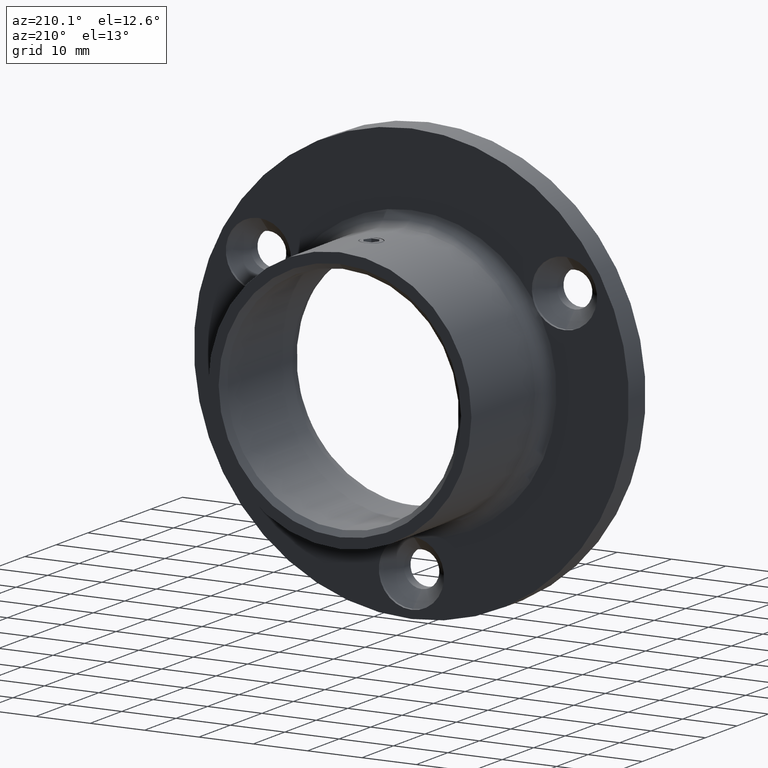
[diagram: clean part render]
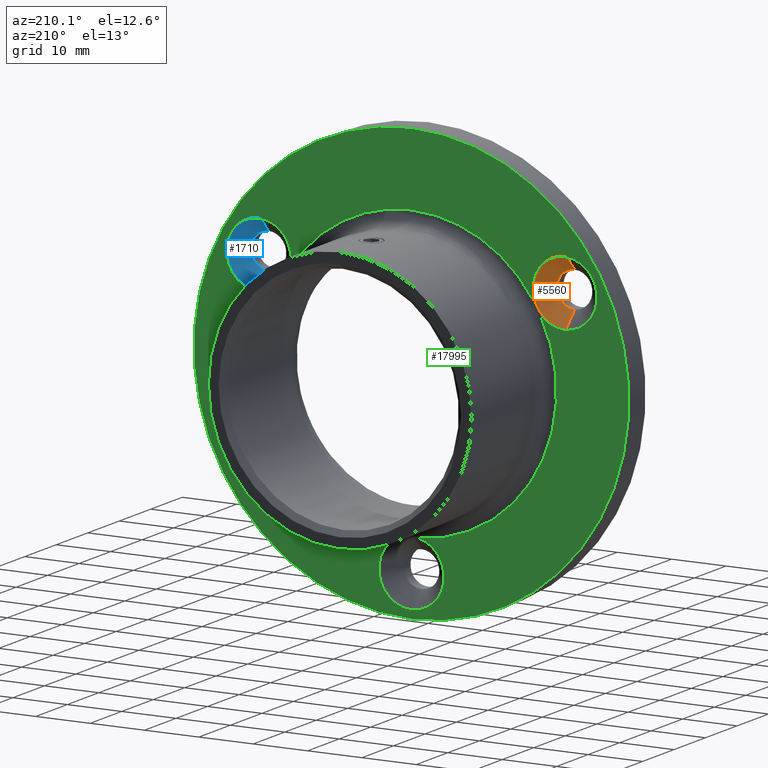
[diagram: same view with three faces highlighted in distinct colors, each labeled with its STEP entity id]
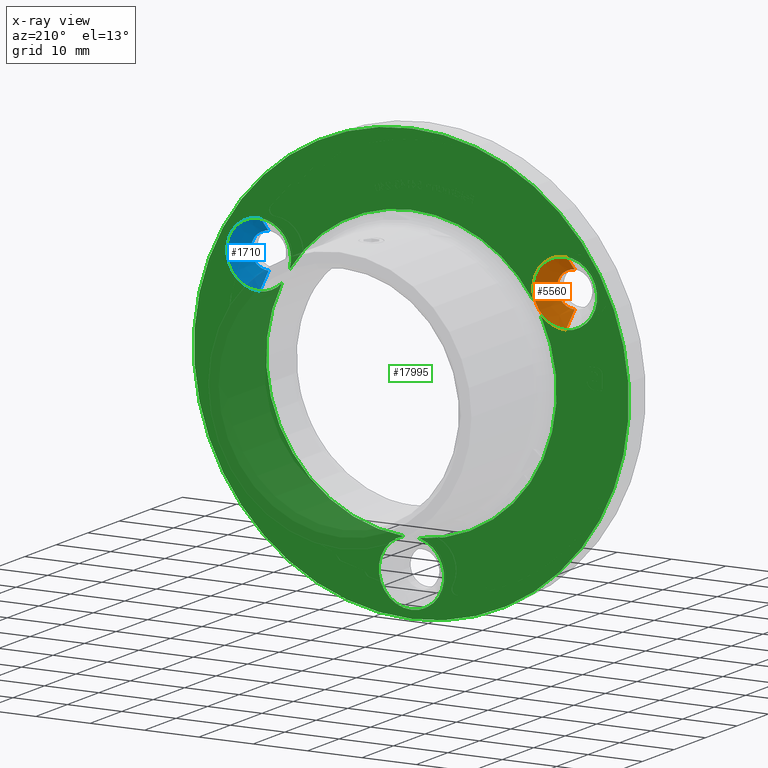
[diagram: x-ray of the same camera — body ghosted, the three highlighted faces saturated]
A machine part, auxiliary view with three faces highlighted in distinct colors.
The next image is the same camera in x-ray (body ghosted, the three faces saturated) — at least one of them is partly hidden behind the body in this view.
Their STEP definitions:

[orange] entity #5560 — the highlighted conical surface has half-angle 45 deg.
#307 = CARTESIAN_POINT ( 'NONE',  ( -28.14582562299440482, 4.799999999999999822, 10.24999999999974243 ) ) ;
#1807 = LINE ( 'NONE', #307, #4485 ) ;
#2123 = AXIS2_PLACEMENT_3D ( 'NONE', #2721, #15356, #16939 ) ;
#2584 = AXIS2_PLACEMENT_3D ( 'NONE', #9635, #15655, #4666 ) ;
#2721 = CARTESIAN_POINT ( 'NONE',  ( -28.14582562299440482, 4.799999999999999822, 16.24999999999974065 ) ) ;
#2879 = ORIENTED_EDGE ( 'NONE', *, *, #9784, .T. ) ;
#3130 = CARTESIAN_POINT ( 'NONE',  ( -28.14582562299440482, 4.799999999999999822, 16.24999999999974065 ) ) ;
#3465 = VERTEX_POINT ( 'NONE', #13587 ) ;
#3725 = CARTESIAN_POINT ( 'NONE',  ( -28.14582562299440482, 4.799999999999999822, 22.24999999999973710 ) ) ;
#3889 = EDGE_LOOP ( 'NONE', ( #12332, #17924, #14070, #2879 ) ) ;
#4485 = VECTOR ( 'NONE', #11384, 999.9999999999998863 ) ;
#4554 = CARTESIAN_POINT ( 'NONE',  ( -28.14582562299440482, 2.049999999999999822, 12.99999999999973710 ) ) ;
#4666 = DIRECTION ( 'NONE',  ( 0.000000000000000000, 0.000000000000000000, 1.000000000000000000 ) ) ;
#5560 = ADVANCED_FACE ( 'NONE', ( #14225 ), #13207, .F. ) ;
#6766 = CIRCLE ( 'NONE', #2584, 3.250000000000002665 ) ;
#7394 = VERTEX_POINT ( 'NONE', #9842 ) ;
#8630 = DIRECTION ( 'NONE',  ( 0.000000000000000000, 0.7071067811865482389, 0.7071067811865469066 ) ) ;
#9635 = CARTESIAN_POINT ( 'NONE',  ( -28.14582562299440482, 2.049999999999999822, 16.24999999999974065 ) ) ;
#9784 = EDGE_CURVE ( 'NONE', #9951, #3465, #16263, .T. ) ;
#9842 = CARTESIAN_POINT ( 'NONE',  ( -28.14582562299440482, 2.049999999999999822, 19.49999999999974420 ) ) ;
#9951 = VERTEX_POINT ( 'NONE', #11134 ) ;
#10504 = VECTOR ( 'NONE', #8630, 999.9999999999998863 ) ;
#10997 = DIRECTION ( 'NONE',  ( -0.000000000000000000, 1.000000000000000000, -0.000000000000000000 ) ) ;
#11134 = CARTESIAN_POINT ( 'NONE',  ( -28.14582562299440482, 4.799999999999999822, 22.24999999999973710 ) ) ;
#11384 = DIRECTION ( 'NONE',  ( 8.659560562354926695E-17, 0.7071067811865482389, -0.7071067811865469066 ) ) ;
#12332 = ORIENTED_EDGE ( 'NONE', *, *, #18464, .F. ) ;
#12763 = EDGE_CURVE ( 'NONE', #7394, #9951, #17195, .T. ) ;
#13062 = VERTEX_POINT ( 'NONE', #4554 ) ;
#13207 = CONICAL_SURFACE ( 'NONE', #2123, 5.999999999999998224, 0.7853981633974473908 ) ;
#13587 = CARTESIAN_POINT ( 'NONE',  ( -28.14582562299440482, 4.799999999999999822, 10.24999999999974243 ) ) ;
#14070 = ORIENTED_EDGE ( 'NONE', *, *, #12763, .T. ) ;
#14225 = FACE_OUTER_BOUND ( 'NONE', #3889, .T. ) ;
#15356 = DIRECTION ( 'NONE',  ( -0.000000000000000000, 1.000000000000000000, -0.000000000000000000 ) ) ;
#15655 = DIRECTION ( 'NONE',  ( -0.000000000000000000, 1.000000000000000000, -0.000000000000000000 ) ) ;
#15701 = DIRECTION ( 'NONE',  ( 0.000000000000000000, 0.000000000000000000, 1.000000000000000000 ) ) ;
#16263 = CIRCLE ( 'NONE', #16672, 5.999999999999998224 ) ;
#16672 = AXIS2_PLACEMENT_3D ( 'NONE', #3130, #10997, #15701 ) ;
#16939 = DIRECTION ( 'NONE',  ( 0.000000000000000000, 0.000000000000000000, 1.000000000000000000 ) ) ;
#17195 = LINE ( 'NONE', #3725, #10504 ) ;
#17425 = EDGE_CURVE ( 'NONE', #7394, #13062, #6766, .T. ) ;
#17924 = ORIENTED_EDGE ( 'NONE', *, *, #17425, .F. ) ;
#18464 = EDGE_CURVE ( 'NONE', #13062, #3465, #1807, .T. ) ;

[blue] entity #1710 — the highlighted conical surface has half-angle 45 deg.
#46 = CARTESIAN_POINT ( 'NONE',  ( 28.14582562299418811, 4.799999999999999822, 22.25000000000013500 ) ) ;
#1631 = LINE ( 'NONE', #10936, #18669 ) ;
#1710 = ADVANCED_FACE ( 'NONE', ( #18514 ), #10577, .F. ) ;
#3107 = CARTESIAN_POINT ( 'NONE',  ( 28.14582562299418811, 2.049999999999999822, 19.50000000000013145 ) ) ;
#4406 = VERTEX_POINT ( 'NONE', #6530 ) ;
#4489 = CARTESIAN_POINT ( 'NONE',  ( 28.14582562299418811, 4.799999999999999822, 10.25000000000012967 ) ) ;
#4832 = EDGE_CURVE ( 'NONE', #4406, #10064, #11501, .T. ) ;
#5089 = VECTOR ( 'NONE', #15616, 1000.000000000000000 ) ;
#5453 = AXIS2_PLACEMENT_3D ( 'NONE', #8136, #6543, #6614 ) ;
#5595 = EDGE_CURVE ( 'NONE', #16162, #17819, #1631, .T. ) ;
#5634 = ORIENTED_EDGE ( 'NONE', *, *, #13681, .F. ) ;
#5842 = EDGE_CURVE ( 'NONE', #17819, #10064, #7818, .T. ) ;
#6530 = CARTESIAN_POINT ( 'NONE',  ( 28.14582562299418811, 2.049999999999999822, 13.00000000000013323 ) ) ;
#6543 = DIRECTION ( 'NONE',  ( -0.000000000000000000, 1.000000000000000000, -0.000000000000000000 ) ) ;
#6614 = DIRECTION ( 'NONE',  ( 0.000000000000000000, 0.000000000000000000, 1.000000000000000000 ) ) ;
#7277 = CARTESIAN_POINT ( 'NONE',  ( 28.14582562299418811, 4.799999999999999822, 16.25000000000013145 ) ) ;
#7818 = CIRCLE ( 'NONE', #17194, 6.000000000000001776 ) ;
#8136 = CARTESIAN_POINT ( 'NONE',  ( 28.14582562299418811, 2.049999999999999822, 16.25000000000013145 ) ) ;
#10064 = VERTEX_POINT ( 'NONE', #13487 ) ;
#10577 = CONICAL_SURFACE ( 'NONE', #14414, 6.000000000000001776, 0.7853981633974488341 ) ;
#10936 = CARTESIAN_POINT ( 'NONE',  ( 28.14582562299418811, 4.799999999999999822, 22.25000000000013500 ) ) ;
#10968 = EDGE_LOOP ( 'NONE', ( #17898, #5634, #16503, #17124 ) ) ;
#11212 = DIRECTION ( 'NONE',  ( 0.000000000000000000, 0.7071067811865471286, 0.7071067811865479058 ) ) ;
#11501 = LINE ( 'NONE', #4489, #5089 ) ;
#13487 = CARTESIAN_POINT ( 'NONE',  ( 28.14582562299418811, 4.799999999999999822, 10.25000000000012967 ) ) ;
#13681 = EDGE_CURVE ( 'NONE', #16162, #4406, #15702, .T. ) ;
#14414 = AXIS2_PLACEMENT_3D ( 'NONE', #7277, #18290, #14986 ) ;
#14986 = DIRECTION ( 'NONE',  ( 0.000000000000000000, 0.000000000000000000, 1.000000000000000000 ) ) ;
#15616 = DIRECTION ( 'NONE',  ( 8.659560562354937789E-17, 0.7071067811865471286, -0.7071067811865479058 ) ) ;
#15669 = DIRECTION ( 'NONE',  ( 0.000000000000000000, 0.000000000000000000, 1.000000000000000000 ) ) ;
#15702 = CIRCLE ( 'NONE', #5453, 3.249999999999999556 ) ;
#15738 = DIRECTION ( 'NONE',  ( -0.000000000000000000, 1.000000000000000000, -0.000000000000000000 ) ) ;
#16162 = VERTEX_POINT ( 'NONE', #3107 ) ;
#16503 = ORIENTED_EDGE ( 'NONE', *, *, #5595, .T. ) ;
#17124 = ORIENTED_EDGE ( 'NONE', *, *, #5842, .T. ) ;
#17194 = AXIS2_PLACEMENT_3D ( 'NONE', #20218, #15738, #15669 ) ;
#17819 = VERTEX_POINT ( 'NONE', #46 ) ;
#17898 = ORIENTED_EDGE ( 'NONE', *, *, #4832, .F. ) ;
#18290 = DIRECTION ( 'NONE',  ( -0.000000000000000000, 1.000000000000000000, -0.000000000000000000 ) ) ;
#18514 = FACE_OUTER_BOUND ( 'NONE', #10968, .T. ) ;
#18669 = VECTOR ( 'NONE', #11212, 1000.000000000000000 ) ;
#20218 = CARTESIAN_POINT ( 'NONE',  ( 28.14582562299418811, 4.799999999999999822, 16.25000000000013145 ) ) ;

[green] entity #17995 — the highlighted planar face has unit normal (0, 1, 0).
#52 = CIRCLE ( 'NONE', #4783, 6.000000000000001776 ) ;
#70 = CARTESIAN_POINT ( 'NONE',  ( 28.14582562299418811, 5.299999999999998934, 16.25000000000013145 ) ) ;
#504 = AXIS2_PLACEMENT_3D ( 'NONE', #18813, #9332, #10920 ) ;
#549 = CARTESIAN_POINT ( 'NONE',  ( 4.898587196589413026E-15, 5.299999999999998934, 40.00000000000000000 ) ) ;
#1154 = DIRECTION ( 'NONE',  ( 0.000000000000000000, 0.000000000000000000, -1.000000000000000000 ) ) ;
#1603 = CIRCLE ( 'NONE', #6697, 6.000000000000001776 ) ;
#1749 = AXIS2_PLACEMENT_3D ( 'NONE', #10143, #14673, #2107 ) ;
#1959 = CARTESIAN_POINT ( 'NONE',  ( 0.000000000000000000, 5.299999999999998046, 0.000000000000000000 ) ) ;
#2107 = DIRECTION ( 'NONE',  ( 0.000000000000000000, 0.000000000000000000, 1.000000000000000000 ) ) ;
#2158 = DIRECTION ( 'NONE',  ( 0.000000000000000000, -0.000000000000000000, 1.000000000000000000 ) ) ;
#2203 = ORIENTED_EDGE ( 'NONE', *, *, #6875, .T. ) ;
#2336 = VERTEX_POINT ( 'NONE', #10459 ) ;
#2951 = DIRECTION ( 'NONE',  ( -0.000000000000000000, 1.000000000000000000, -0.000000000000000000 ) ) ;
#3463 = DIRECTION ( 'NONE',  ( 0.000000000000000000, 0.000000000000000000, -1.000000000000000000 ) ) ;
#3592 = CIRCLE ( 'NONE', #7353, 26.69999999999999929 ) ;
#3758 = AXIS2_PLACEMENT_3D ( 'NONE', #5519, #15042, #11866 ) ;
#3788 = VERTEX_POINT ( 'NONE', #549 ) ;
#3822 = AXIS2_PLACEMENT_3D ( 'NONE', #19751, #11879, #13475 ) ;
#3830 = CIRCLE ( 'NONE', #13886, 40.00000000000000000 ) ;
#3882 = CARTESIAN_POINT ( 'NONE',  ( 0.000000000000000000, 5.299999999999998046, 0.000000000000000000 ) ) ;
#3952 = CIRCLE ( 'NONE', #3822, 5.999999999999998224 ) ;
#4089 = CARTESIAN_POINT ( 'NONE',  ( -28.14582562299440482, 5.299999999999998934, 22.24999999999973710 ) ) ;
#4215 = CARTESIAN_POINT ( 'NONE',  ( 0.000000000000000000, 5.299999999999998934, 0.000000000000000000 ) ) ;
#4663 = DIRECTION ( 'NONE',  ( 0.000000000000000000, 0.000000000000000000, 1.000000000000000000 ) ) ;
#4718 = EDGE_CURVE ( 'NONE', #9290, #3788, #3830, .T. ) ;
#4783 = AXIS2_PLACEMENT_3D ( 'NONE', #18786, #7690, #7832 ) ;
#4882 = DIRECTION ( 'NONE',  ( -0.000000000000000000, 1.000000000000000000, -0.000000000000000000 ) ) ;
#5068 = DIRECTION ( 'NONE',  ( -0.000000000000000000, -1.000000000000000000, -0.000000000000000000 ) ) ;
#5090 = CARTESIAN_POINT ( 'NONE',  ( -1.391945588272075263, 5.299999999999998934, -26.66369230769230469 ) ) ;
#5447 = CARTESIAN_POINT ( 'NONE',  ( 7.347880794884121708E-16, 5.299999999999998934, -38.50000000000000000 ) ) ;
#5519 = CARTESIAN_POINT ( 'NONE',  ( -28.14582562299440482, 5.299999999999998934, 16.24999999999974065 ) ) ;
#5724 = CARTESIAN_POINT ( 'NONE',  ( -28.14582562299440482, 5.299999999999998934, 10.24999999999974243 ) ) ;
#5735 = VERTEX_POINT ( 'NONE', #12556 ) ;
#5848 = CARTESIAN_POINT ( 'NONE',  ( -28.14582562299440482, 5.299999999999998934, 16.24999999999974065 ) ) ;
#5888 = ORIENTED_EDGE ( 'NONE', *, *, #11524, .F. ) ;
#6407 = CARTESIAN_POINT ( 'NONE',  ( -22.39546210301801210, 5.299999999999998934, 14.53730639397381275 ) ) ;
#6471 = EDGE_CURVE ( 'NONE', #2336, #9730, #19756, .T. ) ;
#6592 = EDGE_CURVE ( 'NONE', #12774, #19282, #3952, .T. ) ;
#6697 = AXIS2_PLACEMENT_3D ( 'NONE', #70, #11014, #4663 ) ;
#6789 = PLANE ( 'NONE',  #19790 ) ;
#6875 = EDGE_CURVE ( 'NONE', #16961, #19282, #16809, .T. ) ;
#6902 = VERTEX_POINT ( 'NONE', #7980 ) ;
#7107 = CIRCLE ( 'NONE', #17493, 5.999999999999998224 ) ;
#7190 = EDGE_CURVE ( 'NONE', #11195, #16528, #52, .T. ) ;
#7353 = AXIS2_PLACEMENT_3D ( 'NONE', #3882, #14864, #13209 ) ;
#7690 = DIRECTION ( 'NONE',  ( -0.000000000000000000, 1.000000000000000000, -0.000000000000000000 ) ) ;
#7710 = AXIS2_PLACEMENT_3D ( 'NONE', #1959, #9794, #3463 ) ;
#7832 = DIRECTION ( 'NONE',  ( 0.000000000000000000, 0.000000000000000000, 1.000000000000000000 ) ) ;
#7980 = CARTESIAN_POINT ( 'NONE',  ( 1.391945588272053502, 5.299999999999998046, -26.66369230769230469 ) ) ;
#8433 = DIRECTION ( 'NONE',  ( 0.000000000000000000, 1.000000000000000000, 0.000000000000000000 ) ) ;
#8494 = AXIS2_PLACEMENT_3D ( 'NONE', #18525, #8998, #1154 ) ;
#8998 = DIRECTION ( 'NONE',  ( -0.000000000000000000, -1.000000000000000000, -0.000000000000000000 ) ) ;
#9166 = DIRECTION ( 'NONE',  ( 0.000000000000000000, 0.000000000000000000, 1.000000000000000000 ) ) ;
#9207 = DIRECTION ( 'NONE',  ( 0.000000000000000000, 0.000000000000000000, 1.000000000000000000 ) ) ;
#9290 = VERTEX_POINT ( 'NONE', #16546 ) ;
#9302 = EDGE_LOOP ( 'NONE', ( #16950, #19242 ) ) ;
#9332 = DIRECTION ( 'NONE',  ( -0.000000000000000000, -1.000000000000000000, -0.000000000000000000 ) ) ;
#9726 = EDGE_CURVE ( 'NONE', #5735, #16589, #19963, .T. ) ;
#9730 = VERTEX_POINT ( 'NONE', #18236 ) ;
#9794 = DIRECTION ( 'NONE',  ( -0.000000000000000000, -1.000000000000000000, -0.000000000000000000 ) ) ;
#9833 = CARTESIAN_POINT ( 'NONE',  ( 28.14582562299418811, 5.299999999999998934, 10.25000000000012967 ) ) ;
#10071 = ORIENTED_EDGE ( 'NONE', *, *, #7190, .F. ) ;
#10143 = CARTESIAN_POINT ( 'NONE',  ( 28.14582562299418811, 5.299999999999998934, 16.25000000000013145 ) ) ;
#10170 = FACE_OUTER_BOUND ( 'NONE', #9302, .T. ) ;
#10261 = ORIENTED_EDGE ( 'NONE', *, *, #9726, .T. ) ;
#10386 = EDGE_CURVE ( 'NONE', #2336, #5735, #19456, .T. ) ;
#10459 = CARTESIAN_POINT ( 'NONE',  ( 22.39546210301718077, 5.299999999999998046, 14.53730639397551094 ) ) ;
#10482 = DIRECTION ( 'NONE',  ( 0.000000000000000000, 0.000000000000000000, -1.000000000000000000 ) ) ;
#10791 = CARTESIAN_POINT ( 'NONE',  ( 0.000000000000000000, 5.299999999999998934, -32.50000000000000000 ) ) ;
#10873 = AXIS2_PLACEMENT_3D ( 'NONE', #10791, #15492, #9207 ) ;
#10920 = DIRECTION ( 'NONE',  ( 0.000000000000000000, 0.000000000000000000, -1.000000000000000000 ) ) ;
#11014 = DIRECTION ( 'NONE',  ( -0.000000000000000000, 1.000000000000000000, -0.000000000000000000 ) ) ;
#11075 = EDGE_CURVE ( 'NONE', #16961, #12950, #7107, .T. ) ;
#11184 = CIRCLE ( 'NONE', #18172, 5.999999999999998224 ) ;
#11195 = VERTEX_POINT ( 'NONE', #9833 ) ;
#11524 = EDGE_CURVE ( 'NONE', #6902, #12774, #14990, .T. ) ;
#11866 = DIRECTION ( 'NONE',  ( 0.000000000000000000, 0.000000000000000000, 1.000000000000000000 ) ) ;
#11879 = DIRECTION ( 'NONE',  ( -0.000000000000000000, 1.000000000000000000, -0.000000000000000000 ) ) ;
#11905 = CIRCLE ( 'NONE', #504, 40.00000000000000000 ) ;
#12378 = EDGE_LOOP ( 'NONE', ( #13394, #2203, #17657, #5888, #19430, #10071, #12930, #16929, #16618, #10261, #17438, #17616 ) ) ;
#12556 = CARTESIAN_POINT ( 'NONE',  ( 3.269806953723432873E-15, 5.299999999999998934, 26.69999999999999929 ) ) ;
#12774 = VERTEX_POINT ( 'NONE', #5447 ) ;
#12930 = ORIENTED_EDGE ( 'NONE', *, *, #15121, .F. ) ;
#12950 = VERTEX_POINT ( 'NONE', #5724 ) ;
#12989 = CARTESIAN_POINT ( 'NONE',  ( 26.69999999999999929, 5.299999999999998934, 0.000000000000000000 ) ) ;
#13202 = DIRECTION ( 'NONE',  ( 0.000000000000000000, 0.000000000000000000, -1.000000000000000000 ) ) ;
#13209 = DIRECTION ( 'NONE',  ( 0.000000000000000000, 0.000000000000000000, -1.000000000000000000 ) ) ;
#13394 = ORIENTED_EDGE ( 'NONE', *, *, #11075, .F. ) ;
#13475 = DIRECTION ( 'NONE',  ( 0.000000000000000000, 0.000000000000000000, 1.000000000000000000 ) ) ;
#13816 = DIRECTION ( 'NONE',  ( -0.000000000000000000, -1.000000000000000000, -0.000000000000000000 ) ) ;
#13817 = EDGE_CURVE ( 'NONE', #6902, #16528, #3592, .T. ) ;
#13886 = AXIS2_PLACEMENT_3D ( 'NONE', #4215, #13816, #10482 ) ;
#14357 = CARTESIAN_POINT ( 'NONE',  ( -28.14582562299440482, 5.299999999999998934, 16.24999999999974065 ) ) ;
#14673 = DIRECTION ( 'NONE',  ( -0.000000000000000000, 1.000000000000000000, -0.000000000000000000 ) ) ;
#14864 = DIRECTION ( 'NONE',  ( -0.000000000000000000, -1.000000000000000000, -0.000000000000000000 ) ) ;
#14990 = CIRCLE ( 'NONE', #10873, 5.999999999999998224 ) ;
#15042 = DIRECTION ( 'NONE',  ( -0.000000000000000000, 1.000000000000000000, -0.000000000000000000 ) ) ;
#15121 = EDGE_CURVE ( 'NONE', #9730, #11195, #1603, .T. ) ;
#15175 = CARTESIAN_POINT ( 'NONE',  ( -23.78740769128939547, 5.299999999999998046, 12.12638591371666763 ) ) ;
#15492 = DIRECTION ( 'NONE',  ( -0.000000000000000000, 1.000000000000000000, -0.000000000000000000 ) ) ;
#16183 = CARTESIAN_POINT ( 'NONE',  ( 0.000000000000000000, 5.299999999999998046, 0.000000000000000000 ) ) ;
#16528 = VERTEX_POINT ( 'NONE', #18927 ) ;
#16546 = CARTESIAN_POINT ( 'NONE',  ( 0.000000000000000000, 5.299999999999998934, -40.00000000000000000 ) ) ;
#16553 = EDGE_CURVE ( 'NONE', #19682, #16589, #11184, .T. ) ;
#16589 = VERTEX_POINT ( 'NONE', #6407 ) ;
#16618 = ORIENTED_EDGE ( 'NONE', *, *, #10386, .T. ) ;
#16689 = EDGE_CURVE ( 'NONE', #12950, #19682, #19568, .T. ) ;
#16809 = CIRCLE ( 'NONE', #7710, 26.69999999999999929 ) ;
#16929 = ORIENTED_EDGE ( 'NONE', *, *, #6471, .F. ) ;
#16950 = ORIENTED_EDGE ( 'NONE', *, *, #4718, .F. ) ;
#16961 = VERTEX_POINT ( 'NONE', #15175 ) ;
#17438 = ORIENTED_EDGE ( 'NONE', *, *, #16553, .F. ) ;
#17493 = AXIS2_PLACEMENT_3D ( 'NONE', #5848, #2951, #9166 ) ;
#17616 = ORIENTED_EDGE ( 'NONE', *, *, #16689, .F. ) ;
#17657 = ORIENTED_EDGE ( 'NONE', *, *, #6592, .F. ) ;
#17711 = EDGE_CURVE ( 'NONE', #3788, #9290, #11905, .T. ) ;
#17995 = ADVANCED_FACE ( 'NONE', ( #19808, #10170 ), #6789, .T. ) ;
#18172 = AXIS2_PLACEMENT_3D ( 'NONE', #14357, #4882, #18976 ) ;
#18236 = CARTESIAN_POINT ( 'NONE',  ( 28.14582562299418811, 5.299999999999998934, 22.25000000000013500 ) ) ;
#18272 = AXIS2_PLACEMENT_3D ( 'NONE', #16183, #5068, #13202 ) ;
#18525 = CARTESIAN_POINT ( 'NONE',  ( 0.000000000000000000, 5.299999999999998046, 0.000000000000000000 ) ) ;
#18786 = CARTESIAN_POINT ( 'NONE',  ( 28.14582562299418811, 5.299999999999998934, 16.25000000000013145 ) ) ;
#18813 = CARTESIAN_POINT ( 'NONE',  ( 0.000000000000000000, 5.299999999999998934, 0.000000000000000000 ) ) ;
#18927 = CARTESIAN_POINT ( 'NONE',  ( 23.78740769128906152, 5.299999999999998934, 12.12638591371723429 ) ) ;
#18976 = DIRECTION ( 'NONE',  ( 0.000000000000000000, 0.000000000000000000, 1.000000000000000000 ) ) ;
#19242 = ORIENTED_EDGE ( 'NONE', *, *, #17711, .F. ) ;
#19282 = VERTEX_POINT ( 'NONE', #5090 ) ;
#19430 = ORIENTED_EDGE ( 'NONE', *, *, #13817, .T. ) ;
#19456 = CIRCLE ( 'NONE', #18272, 26.69999999999999929 ) ;
#19568 = CIRCLE ( 'NONE', #3758, 5.999999999999998224 ) ;
#19682 = VERTEX_POINT ( 'NONE', #4089 ) ;
#19751 = CARTESIAN_POINT ( 'NONE',  ( 0.000000000000000000, 5.299999999999998934, -32.50000000000000000 ) ) ;
#19756 = CIRCLE ( 'NONE', #1749, 6.000000000000001776 ) ;
#19790 = AXIS2_PLACEMENT_3D ( 'NONE', #12989, #8433, #2158 ) ;
#19808 = FACE_BOUND ( 'NONE', #12378, .T. ) ;
#19963 = CIRCLE ( 'NONE', #8494, 26.69999999999999929 ) ;